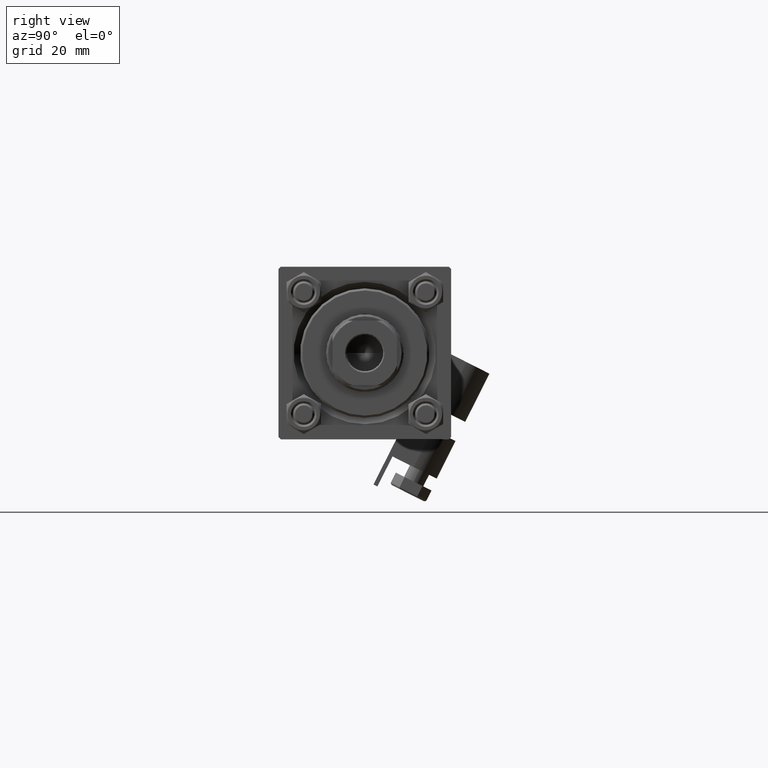
[diagram: clean part render]
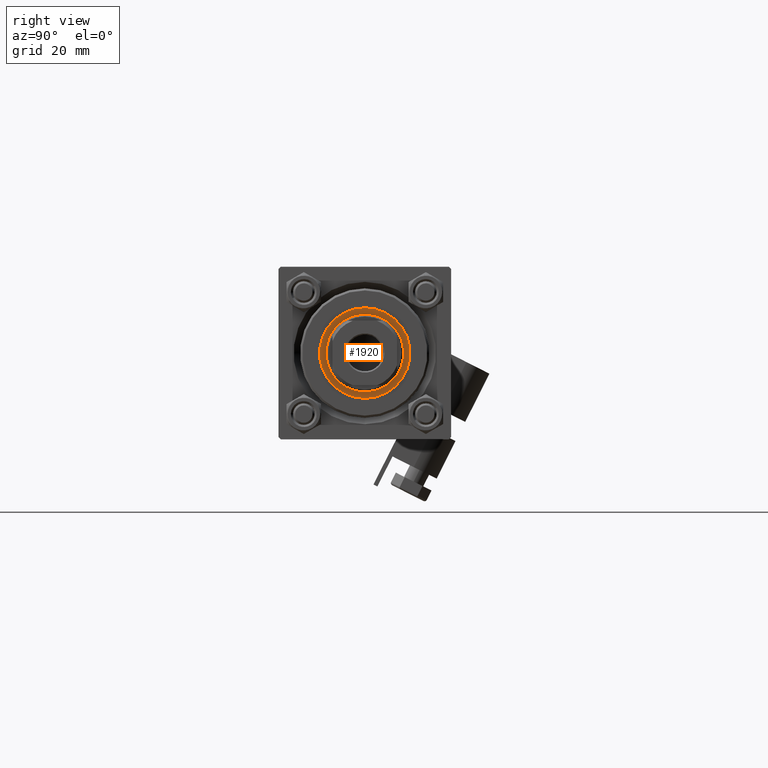
[diagram: same view with one face highlighted and labeled with its STEP entity id]
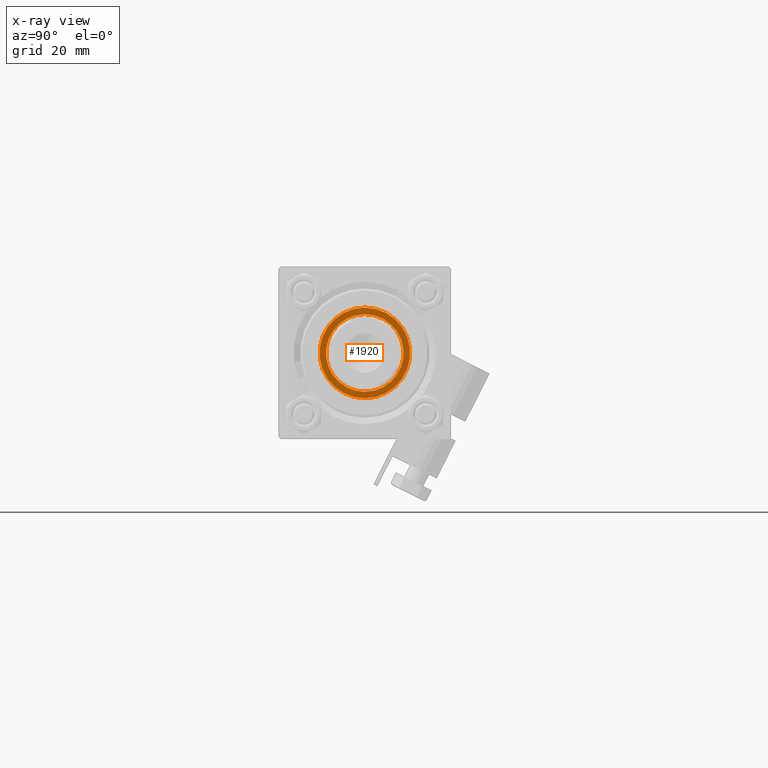
[diagram: x-ray of the same camera — body ghosted, the highlighted face saturated]
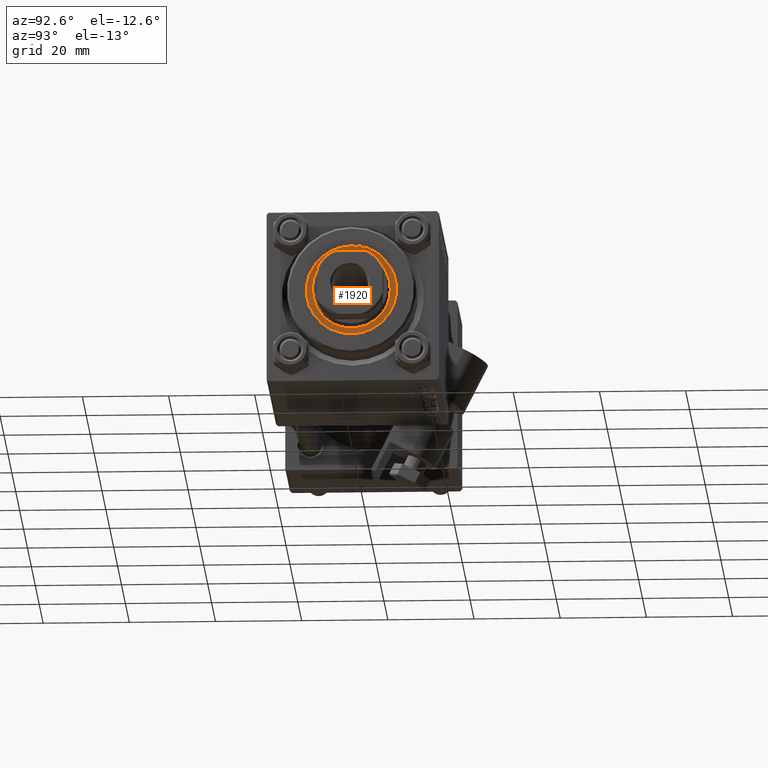
[diagram: same view with one face highlighted and labeled with its STEP entity id]
A machine part, right view. The second image highlights one B-rep face of the part: STEP entity #1920.
The next image is the same camera in x-ray: the body ghosted, the highlighted face saturated — about 0% of this face is hidden behind the body in this view.
A second angle (auxiliary view) of the same face is appended — the face is thin or edge-on in the first view.
In plain terms, the highlighted planar face has unit normal (1, 0, -0).
Its self-contained STEP definition (entity closure, byte-faithful):
#114 = DIRECTION ( 'NONE',  ( 0.000000000000000000, 0.000000000000000000, 1.000000000000000000 ) ) ;
#1920 = ADVANCED_FACE ( 'NONE', ( #8558, #27830 ), #8822, .T. ) ;
#3154 = DIRECTION ( 'NONE',  ( 0.000000000000000000, 0.000000000000000000, 1.000000000000000000 ) ) ;
#3261 = EDGE_CURVE ( 'NONE', #10214, #16016, #43605, .T. ) ;
#3774 = AXIS2_PLACEMENT_3D ( 'NONE', #24110, #12304, #5105 ) ;
#4457 = CARTESIAN_POINT ( 'NONE',  ( 0.000000000000000000, 0.000000000000000000, 35.20000000000000284 ) ) ;
#4607 = ORIENTED_EDGE ( 'NONE', *, *, #47380, .T. ) ;
#5105 = DIRECTION ( 'NONE',  ( 1.000000000000000000, 0.000000000000000000, 0.000000000000000000 ) ) ;
#6604 = CARTESIAN_POINT ( 'NONE',  ( -10.50000000000000000, 1.285879139104720831E-15, 35.20000000000000284 ) ) ;
#7211 = CIRCLE ( 'NONE', #32651, 9.000000000000000000 ) ;
#7348 = CARTESIAN_POINT ( 'NONE',  ( 9.000000000000000000, 0.000000000000000000, 35.20000000000000284 ) ) ;
#8558 = FACE_OUTER_BOUND ( 'NONE', #26112, .T. ) ;
#8822 = PLANE ( 'NONE',  #24695 ) ;
#10214 = VERTEX_POINT ( 'NONE', #7348 ) ;
#11030 = ORIENTED_EDGE ( 'NONE', *, *, #28826, .T. ) ;
#11046 = DIRECTION ( 'NONE',  ( -0.000000000000000000, -0.000000000000000000, -1.000000000000000000 ) ) ;
#12304 = DIRECTION ( 'NONE',  ( 0.000000000000000000, 0.000000000000000000, 1.000000000000000000 ) ) ;
#12664 = DIRECTION ( 'NONE',  ( 1.000000000000000000, 0.000000000000000000, -0.000000000000000000 ) ) ;
#14893 = CARTESIAN_POINT ( 'NONE',  ( 0.000000000000000000, 0.000000000000000000, 35.20000000000000284 ) ) ;
#15960 = DIRECTION ( 'NONE',  ( -0.000000000000000000, -0.000000000000000000, -1.000000000000000000 ) ) ;
#16016 = VERTEX_POINT ( 'NONE', #32553 ) ;
#16275 = EDGE_LOOP ( 'NONE', ( #38032, #11030 ) ) ;
#21459 = AXIS2_PLACEMENT_3D ( 'NONE', #14893, #11046, #26703 ) ;
#21903 = CIRCLE ( 'NONE', #48991, 10.50000000000000000 ) ;
#23921 = DIRECTION ( 'NONE',  ( 1.000000000000000000, 0.000000000000000000, 0.000000000000000000 ) ) ;
#24110 = CARTESIAN_POINT ( 'NONE',  ( 0.000000000000000000, 0.000000000000000000, 35.20000000000000284 ) ) ;
#24127 = CARTESIAN_POINT ( 'NONE',  ( 10.50000000000000000, 0.000000000000000000, 35.20000000000000284 ) ) ;
#24695 = AXIS2_PLACEMENT_3D ( 'NONE', #4457, #114, #12664 ) ;
#25727 = VERTEX_POINT ( 'NONE', #6604 ) ;
#26112 = EDGE_LOOP ( 'NONE', ( #4607, #48820 ) ) ;
#26703 = DIRECTION ( 'NONE',  ( 1.000000000000000000, 0.000000000000000000, 0.000000000000000000 ) ) ;
#27830 = FACE_BOUND ( 'NONE', #16275, .T. ) ;
#28826 = EDGE_CURVE ( 'NONE', #16016, #10214, #7211, .T. ) ;
#32553 = CARTESIAN_POINT ( 'NONE',  ( -9.000000000000000000, 1.102182119232617714E-15, 35.20000000000000284 ) ) ;
#32651 = AXIS2_PLACEMENT_3D ( 'NONE', #47297, #15960, #23921 ) ;
#34921 = CIRCLE ( 'NONE', #3774, 10.50000000000000000 ) ;
#35613 = VERTEX_POINT ( 'NONE', #24127 ) ;
#38032 = ORIENTED_EDGE ( 'NONE', *, *, #3261, .T. ) ;
#38820 = CARTESIAN_POINT ( 'NONE',  ( 0.000000000000000000, 0.000000000000000000, 35.20000000000000284 ) ) ;
#43605 = CIRCLE ( 'NONE', #21459, 9.000000000000000000 ) ;
#47297 = CARTESIAN_POINT ( 'NONE',  ( 0.000000000000000000, 0.000000000000000000, 35.20000000000000284 ) ) ;
#47380 = EDGE_CURVE ( 'NONE', #35613, #25727, #34921, .T. ) ;
#48820 = ORIENTED_EDGE ( 'NONE', *, *, #49930, .T. ) ;
#48991 = AXIS2_PLACEMENT_3D ( 'NONE', #38820, #3154, #49874 ) ;
#49874 = DIRECTION ( 'NONE',  ( 1.000000000000000000, 0.000000000000000000, 0.000000000000000000 ) ) ;
#49930 = EDGE_CURVE ( 'NONE', #25727, #35613, #21903, .T. ) ;